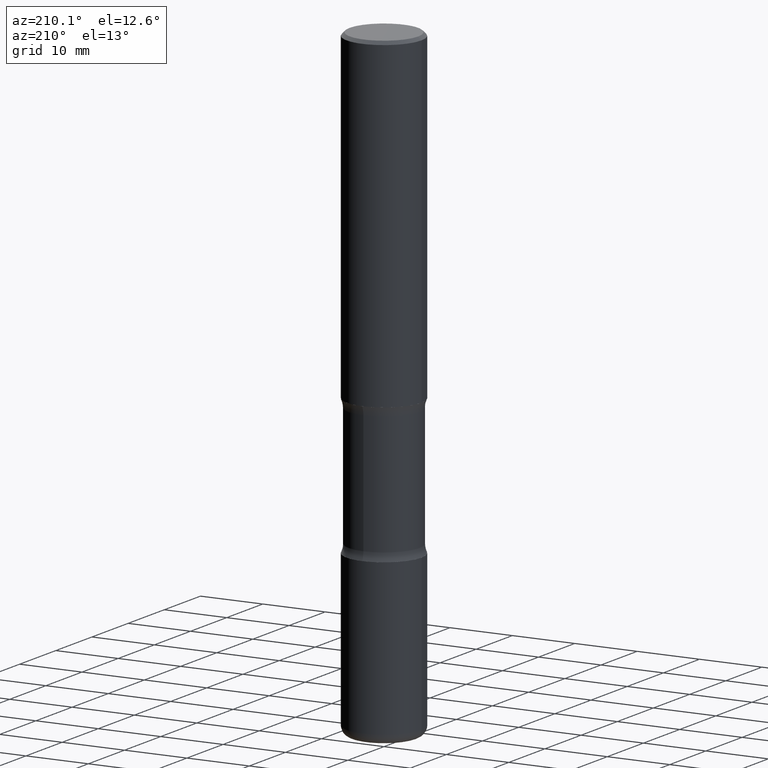
[diagram: clean part render]
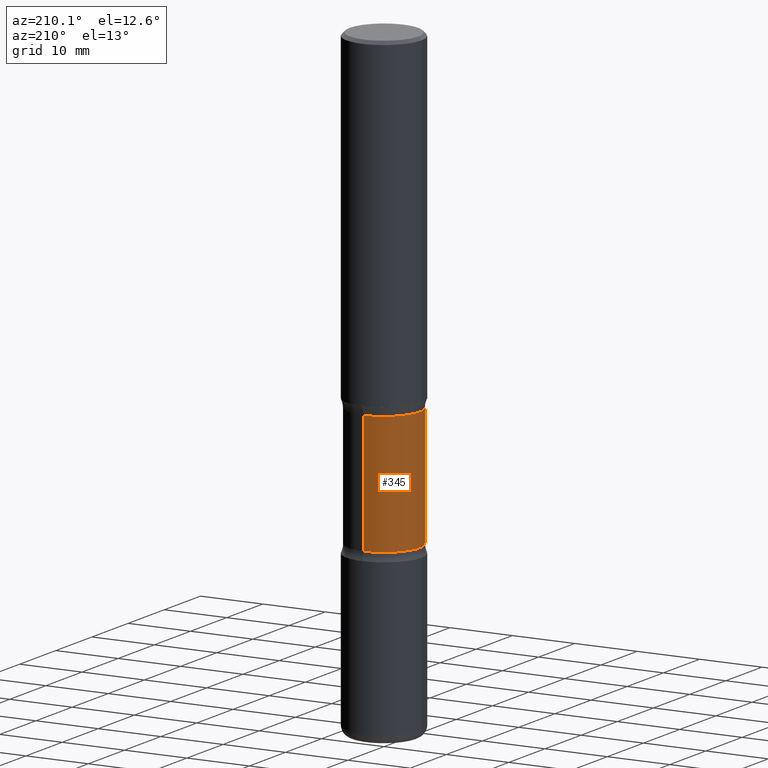
[diagram: same view with one face highlighted and labeled with its STEP entity id]
A machine part, auxiliary view. The second image highlights one B-rep face of the part: STEP entity #345.
In plain terms, the highlighted cylindrical surface (partial cylindrical patch) has radius 5.6998 mm, axis along (0, -0, -1).
Its self-contained STEP definition (entity closure, byte-faithful):
#6 = CYLINDRICAL_SURFACE ( 'NONE', #74, 0.2243999999999999329 ) ;
#14 = FACE_OUTER_BOUND ( 'NONE', #292, .T. ) ;
#25 = EDGE_CURVE ( 'NONE', #480, #351, #337, .T. ) ;
#31 = CARTESIAN_POINT ( 'NONE',  ( -1.579972688886734072E-15, -0.2244000000000073713, -2.100216601173594544 ) ) ;
#39 = LINE ( 'NONE', #117, #99 ) ;
#71 = DIRECTION ( 'NONE',  ( 2.525985086076564115E-29, -3.376177443336566513E-15, -1.000000000000000000 ) ) ;
#74 = AXIS2_PLACEMENT_3D ( 'NONE', #276, #311, #446 ) ;
#99 = VECTOR ( 'NONE', #212, 39.37007874015748143 ) ;
#116 = CIRCLE ( 'NONE', #502, 0.2243999999999999606 ) ;
#117 = CARTESIAN_POINT ( 'NONE',  ( -1.539495750699834052E-15, -0.2244000000000135608, -3.936999999999999389 ) ) ;
#157 = CARTESIAN_POINT ( 'NONE',  ( 5.070539682259229331E-29, -7.426630284172150130E-15, -2.100216601173595432 ) ) ;
#189 = EDGE_CURVE ( 'NONE', #204, #351, #332, .T. ) ;
#204 = VERTEX_POINT ( 'NONE', #430 ) ;
#209 = VECTOR ( 'NONE', #71, 39.37007874015748143 ) ;
#212 = DIRECTION ( 'NONE',  ( 2.525985086076564115E-29, -3.376177443336566513E-15, -1.000000000000000000 ) ) ;
#217 = EDGE_CURVE ( 'NONE', #513, #204, #39, .T. ) ;
#238 = CARTESIAN_POINT ( 'NONE',  ( 1.566976824872848494E-15, 0.2243999999999925499, -2.100216601173596320 ) ) ;
#275 = ORIENTED_EDGE ( 'NONE', *, *, #458, .T. ) ;
#276 = CARTESIAN_POINT ( 'NONE',  ( 9.710227154047748282E-29, -1.362793696358492956E-14, -3.937000000000000277 ) ) ;
#284 = DIRECTION ( 'NONE',  ( 6.982962677686265922E-15, 1.000000000000000000, -3.652203200085913934E-15 ) ) ;
#292 = EDGE_LOOP ( 'NONE', ( #500, #275, #381, #487 ) ) ;
#311 = DIRECTION ( 'NONE',  ( 2.525985086076564115E-29, -3.376177443336566513E-15, -1.000000000000000000 ) ) ;
#332 = CIRCLE ( 'NONE', #429, 0.2243999999999999606 ) ;
#337 = LINE ( 'NONE', #423, #209 ) ;
#345 = ADVANCED_FACE ( 'NONE', ( #14 ), #6, .T. ) ;
#350 = DIRECTION ( 'NONE',  ( 2.525985086076564115E-29, -3.376177443336566513E-15, -1.000000000000000000 ) ) ;
#351 = VERTEX_POINT ( 'NONE', #442 ) ;
#380 = DIRECTION ( 'NONE',  ( 2.525985086076564115E-29, -3.376177443336566513E-15, -1.000000000000000000 ) ) ;
#381 = ORIENTED_EDGE ( 'NONE', *, *, #25, .T. ) ;
#423 = CARTESIAN_POINT ( 'NONE',  ( 1.566976824872894642E-15, 0.2243999999999863049, -3.937000000000000721 ) ) ;
#429 = AXIS2_PLACEMENT_3D ( 'NONE', #472, #350, #468 ) ;
#430 = CARTESIAN_POINT ( 'NONE',  ( -1.579972688886713168E-15, -0.2244000000000099804, -2.860383398826404466 ) ) ;
#442 = CARTESIAN_POINT ( 'NONE',  ( 1.566976824872867821E-15, 0.2243999999999899686, -2.860383398826405799 ) ) ;
#446 = DIRECTION ( 'NONE',  ( 6.982962677686265922E-15, 1.000000000000000000, -2.434802133390609815E-15 ) ) ;
#458 = EDGE_CURVE ( 'NONE', #513, #480, #116, .T. ) ;
#468 = DIRECTION ( 'NONE',  ( 6.982962677686265922E-15, 1.000000000000000000, -2.434802133390609421E-15 ) ) ;
#472 = CARTESIAN_POINT ( 'NONE',  ( 6.990709676060807691E-29, -9.993088279580958225E-15, -2.860383398826405354 ) ) ;
#480 = VERTEX_POINT ( 'NONE', #238 ) ;
#487 = ORIENTED_EDGE ( 'NONE', *, *, #189, .F. ) ;
#500 = ORIENTED_EDGE ( 'NONE', *, *, #217, .F. ) ;
#502 = AXIS2_PLACEMENT_3D ( 'NONE', #157, #380, #284 ) ;
#513 = VERTEX_POINT ( 'NONE', #31 ) ;